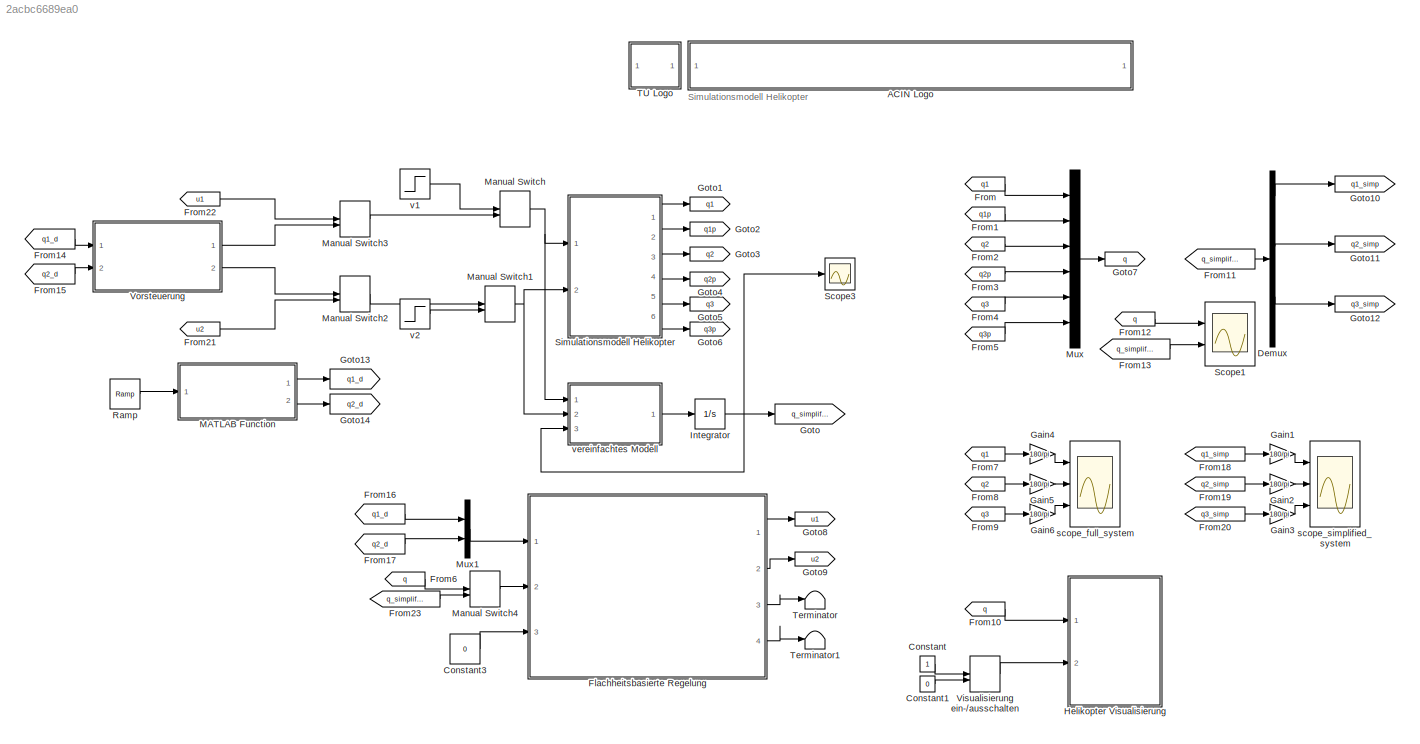
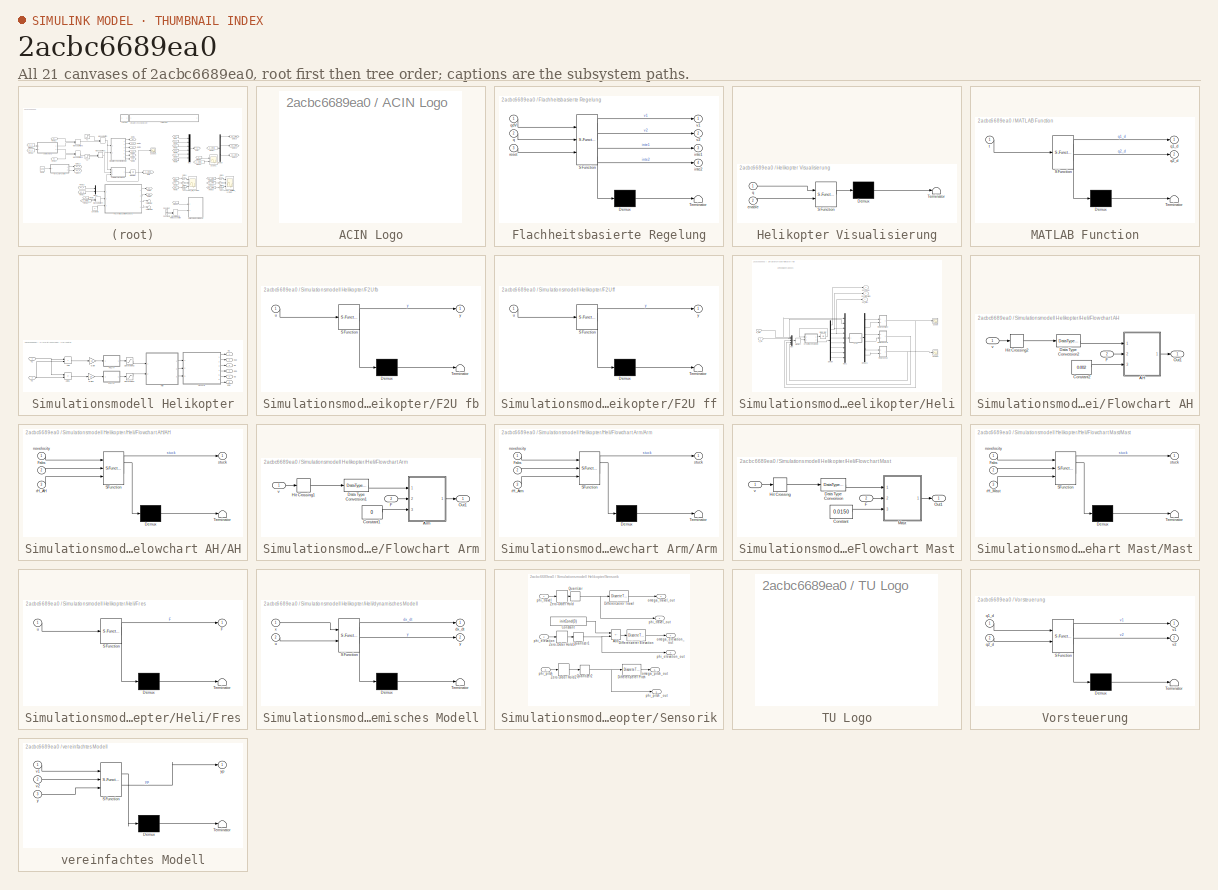
[diagram: thumbnail index - all 21 canvases of the model, root first then tree order]
MODEL slx_2acbc6689ea0
KIND model
CONFIG AbsTol = auto
CONFIG EnableMultiTasking = on
CONFIG FixedStep = auto
CONFIG MaxStep = auto
CONFIG MinStep = auto
CONFIG PostLoadFcn = , if any(exist('dsrtsu_mdlpostloadfcn', 'file') == [2, 3, 6]), try dsrtsu_mdlpostloadfcn('Execute', bdroot); catch fprintf('Error in PostLoadFcn (dsrtsu_mdlpostloadfcn) for model "%s":\n %s\n', bdroot, lasterr); end, end, \n
CONFIG RelTol = 1e-2
CONFIG SampleTimeConstraint = Unconstrained
CONFIG SolverName = ode113
CONFIG StartTime = 0.0
CONFIG StopTime = 50
BLOCK [SubSystem] ACIN Logo
  Ports = []
  RequestExecContextInheritance = off
  UserDataPersistent = on
BLOCK [Constant] Constant
BLOCK [Constant] Constant1
  Value = 0
BLOCK [Constant] Constant3
  Value = 0
BLOCK [Demux] Demux
  Outputs = 6
  Ports = [1, 6]
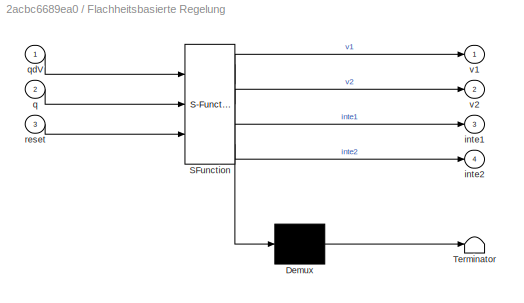
BLOCK [SubSystem] Flachheitsbasierte Regelung
  ErrorFcn = Stateflow.Translate.translate
  PermitHierarchicalResolution = ExplicitOnly
  Ports = [3, 4]
  RequestExecContextInheritance = off
  SFBlockType = MATLAB Function
  TreatAsAtomicUnit = on
BLOCK [Demux] Flachheitsbasierte Regelung/ Demux 
  Outputs = 1
  Ports = [1, 1]
BLOCK [S-Function] Flachheitsbasierte Regelung/ SFunction 
  EnableBusSupport = on
  FunctionName = sf_sfun
  Parameters = Ta,regPar,sysPar
  PortCounts = [3 5]
  Ports = [3, 5]
  SFcnIsStateOwnerBlock = off
  SFunctionDeploymentMode = off
  Tag = Stateflow S-Function 4
BLOCK [Terminator] Flachheitsbasierte Regelung/ Terminator 
BLOCK [Outport] Flachheitsbasierte Regelung/inte1
  Port = 3
  VectorParamsAs1DForOutWhenUnconnected = off
BLOCK [Outport] Flachheitsbasierte Regelung/inte2
  Port = 4
  VectorParamsAs1DForOutWhenUnconnected = off
BLOCK [Inport] Flachheitsbasierte Regelung/q
  Port = 2
BLOCK [Inport] Flachheitsbasierte Regelung/qdV
BLOCK [Inport] Flachheitsbasierte Regelung/reset
  Port = 3
BLOCK [Outport] Flachheitsbasierte Regelung/v1
  VectorParamsAs1DForOutWhenUnconnected = off
BLOCK [Outport] Flachheitsbasierte Regelung/v2
  Port = 2
  VectorParamsAs1DForOutWhenUnconnected = off
BLOCK [From] From
  GotoTag = q1
  TagVisibility = global
BLOCK [From] From1
  GotoTag = q1p
  TagVisibility = global
BLOCK [From] From10
  GotoTag = q
  TagVisibility = global
BLOCK [From] From11
  GotoTag = q_simplified
BLOCK [From] From12
  GotoTag = q
  TagVisibility = global
BLOCK [From] From13
  GotoTag = q_simplified
BLOCK [From] From14
  GotoTag = q1_d
BLOCK [From] From15
  GotoTag = q2_d
BLOCK [From] From16
  GotoTag = q1_d
BLOCK [From] From17
  GotoTag = q2_d
BLOCK [From] From18
  GotoTag = q1_simp
BLOCK [From] From19
  GotoTag = q2_simp
BLOCK [From] From2
  GotoTag = q2
  TagVisibility = global
BLOCK [From] From20
  GotoTag = q3_simp
BLOCK [From] From21
  GotoTag = u2
  TagVisibility = global
BLOCK [From] From22
  GotoTag = u1
  TagVisibility = global
BLOCK [From] From23
  GotoTag = q_simplified
BLOCK [From] From3
  GotoTag = q2p
  TagVisibility = global
BLOCK [From] From4
  GotoTag = q3
  TagVisibility = global
BLOCK [From] From5
  GotoTag = q3p
  TagVisibility = global
BLOCK [From] From6
  GotoTag = q
  TagVisibility = global
BLOCK [From] From7
  GotoTag = q1
  TagVisibility = global
BLOCK [From] From8
  GotoTag = q2
  TagVisibility = global
BLOCK [From] From9
  GotoTag = q3
  TagVisibility = global
BLOCK [Gain] Gain1
  Gain = 180/pi
  OutDataTypeStr = Inherit: Same as input
  ParamDataTypeStr = Inherit: Same as input
  SaturateOnIntegerOverflow = on
BLOCK [Gain] Gain2
  Gain = 180/pi
  OutDataTypeStr = Inherit: Same as input
  ParamDataTypeStr = Inherit: Same as input
  SaturateOnIntegerOverflow = on
BLOCK [Gain] Gain3
  Gain = 180/pi
  OutDataTypeStr = Inherit: Same as input
  ParamDataTypeStr = Inherit: Same as input
  SaturateOnIntegerOverflow = on
BLOCK [Gain] Gain4
  Gain = 180/pi
  OutDataTypeStr = Inherit: Same as input
  ParamDataTypeStr = Inherit: Same as input
  SaturateOnIntegerOverflow = on
BLOCK [Gain] Gain5
  Gain = 180/pi
  OutDataTypeStr = Inherit: Same as input
  ParamDataTypeStr = Inherit: Same as input
  SaturateOnIntegerOverflow = on
BLOCK [Gain] Gain6
  Gain = 180/pi
  OutDataTypeStr = Inherit: Same as input
  ParamDataTypeStr = Inherit: Same as input
  SaturateOnIntegerOverflow = on
BLOCK [Goto] Goto
  GotoTag = q_simplified
BLOCK [Goto] Goto1
  GotoTag = q1
  TagVisibility = global
BLOCK [Goto] Goto10
  GotoTag = q1_simp
BLOCK [Goto] Goto11
  GotoTag = q2_simp
BLOCK [Goto] Goto12
  GotoTag = q3_simp
BLOCK [Goto] Goto13
  GotoTag = q1_d
BLOCK [Goto] Goto14
  GotoTag = q2_d
BLOCK [Goto] Goto2
  GotoTag = q1p
  TagVisibility = global
BLOCK [Goto] Goto3
  GotoTag = q2
  TagVisibility = global
BLOCK [Goto] Goto4
  GotoTag = q2p
  TagVisibility = global
BLOCK [Goto] Goto5
  GotoTag = q3
  TagVisibility = global
BLOCK [Goto] Goto6
  GotoTag = q3p
  TagVisibility = global
BLOCK [Goto] Goto7
  GotoTag = q
  TagVisibility = global
BLOCK [Goto] Goto8
  GotoTag = u1
  TagVisibility = global
BLOCK [Goto] Goto9
  GotoTag = u2
  TagVisibility = global
BLOCK [SubSystem] Helikopter Visualisierung
  ErrorFcn = Stateflow.Translate.translate
  PermitHierarchicalResolution = ExplicitOnly
  Ports = [2]
  RequestExecContextInheritance = off
  SFBlockType = MATLAB Function
  TreatAsAtomicUnit = on
BLOCK [Demux] Helikopter Visualisierung/ Demux 
  Outputs = 1
  Ports = [1, 1]
BLOCK [S-Function] Helikopter Visualisierung/ SFunction 
  EnableBusSupport = on
  FunctionName = sf_sfun
  PortCounts = [2 1]
  Ports = [2, 1]
  SFcnIsStateOwnerBlock = off
  SFunctionDeploymentMode = off
  Tag = Stateflow S-Function 11
BLOCK [Terminator] Helikopter Visualisierung/ Terminator 
BLOCK [Inport] Helikopter Visualisierung/enable
  Port = 2
BLOCK [Inport] Helikopter Visualisierung/q
BLOCK [Integrator] Integrator
  InitialCondition = sysPar.qR
  Ports = [1, 1]
BLOCK [SubSystem] MATLAB Function
  ErrorFcn = Stateflow.Translate.translate
  PermitHierarchicalResolution = ExplicitOnly
  Ports = [1, 2]
  RequestExecContextInheritance = off
  SFBlockType = MATLAB Function
  TreatAsAtomicUnit = on
BLOCK [Demux] MATLAB Function/ Demux 
  Outputs = 1
  Ports = [1, 1]
BLOCK [S-Function] MATLAB Function/ SFunction 
  EnableBusSupport = on
  FunctionName = sf_sfun
  Parameters = sysPar
  PortCounts = [1 3]
  Ports = [1, 3]
  SFcnIsStateOwnerBlock = off
  SFunctionDeploymentMode = off
  Tag = Stateflow S-Function 12
BLOCK [Terminator] MATLAB Function/ Terminator 
BLOCK [Outport] MATLAB Function/q1_d
BLOCK [Outport] MATLAB Function/q2_d
  Port = 2
BLOCK [Inport] MATLAB Function/t
BLOCK [ManualSwitch] Manual Switch
  CurrentSetting = 0
BLOCK [ManualSwitch] Manual Switch1
BLOCK [ManualSwitch] Manual Switch2
  CurrentSetting = 0
BLOCK [ManualSwitch] Manual Switch3
BLOCK [ManualSwitch] Manual Switch4
  CurrentSetting = 0
BLOCK [Mux] Mux
  DisplayOption = bar
  Inputs = 6
  Ports = [6, 1]
BLOCK [Mux] Mux1
  DisplayOption = bar
  Inputs = 2
  Ports = [2, 1]
BLOCK [Reference] Ramp  REF=simulink/Sources/Ramp
  Ports = [0, 1]
  SourceBlock = simulink/Sources/Ramp
  SourceProductBaseCode = SL
  SourceType = Ramp
BLOCK [Scope] Scope1
  Floating = off
  NumInputPorts = 2
  Ports = [2]
  ScopeSpecificationString = Simulink.scopes.TimeScopeBlockCfg('CurrentConfiguration', extmgr.ConfigurationSet(extmgr.Configuration('Core','General UI',true),extmgr.Configuration('Core','Source UI',true),extmgr.Configuration('Sources','WiredSimulink',true,'DataLoggingVariableName','ScopeData1'),extmgr.Configuration('Visuals','Time Domain',true,'SerializedDisplays',{struct('MinYLimReal','-6.89631','MaxYLimReal','12.35813','YLa...<+1680ch>
BLOCK [Scope] Scope3
  Floating = off
  NumInputPorts = 1
  Ports = [1]
  ScopeSpecificationString = Simulink.scopes.TimeScopeBlockCfg('CurrentConfiguration', extmgr.ConfigurationSet(extmgr.Configuration('Core','General UI',true),extmgr.Configuration('Core','Source UI',true),extmgr.Configuration('Sources','WiredSimulink',true,'DataLoggingVariableName','ScopeData1'),extmgr.Configuration('Visuals','Time Domain',true,'SerializedDisplays',{struct('MinYLimReal','-1.90194','MaxYLimReal','7.19266','YLab...<+1477ch>
BLOCK [SubSystem] Simulationsmodell Helikopter
  MinAlgLoopOccurrences = on
  Ports = [2, 6]
  RequestExecContextInheritance = off
BLOCK [Sum] Simulationsmodell Helikopter/Add
  IconShape = rectangular
  Ports = [2, 1]
BLOCK [Sum] Simulationsmodell Helikopter/Add1
  IconShape = rectangular
  Inputs = +-
  Ports = [2, 1]
BLOCK [SubSystem] Simulationsmodell Helikopter/F2U fb
  ErrorFcn = Stateflow.Translate.translate
  PermitHierarchicalResolution = ExplicitOnly
  Ports = [1, 1]
  RequestExecContextInheritance = off
  SFBlockType = MATLAB Function
  TreatAsAtomicUnit = on
BLOCK [Demux] Simulationsmodell Helikopter/F2U fb/ Demux 
  Outputs = 1
  Ports = [1, 1]
BLOCK [S-Function] Simulationsmodell Helikopter/F2U fb/ SFunction 
  EnableBusSupport = on
  FunctionName = sf_sfun
  PortCounts = [1 2]
  Ports = [1, 2]
  SFcnIsStateOwnerBlock = off
  SFunctionDeploymentMode = off
  Tag = Stateflow S-Function 8
BLOCK [Terminator] Simulationsmodell Helikopter/F2U fb/ Terminator 
BLOCK [Inport] Simulationsmodell Helikopter/F2U fb/u
BLOCK [Outport] Simulationsmodell Helikopter/F2U fb/y
  VectorParamsAs1DForOutWhenUnconnected = off
BLOCK [SubSystem] Simulationsmodell Helikopter/F2U ff
  ErrorFcn = Stateflow.Translate.translate
  PermitHierarchicalResolution = ExplicitOnly
  Ports = [1, 1]
  RequestExecContextInheritance = off
  SFBlockType = MATLAB Function
  TreatAsAtomicUnit = on
BLOCK [Demux] Simulationsmodell Helikopter/F2U ff/ Demux 
  Outputs = 1
  Ports = [1, 1]
BLOCK [S-Function] Simulationsmodell Helikopter/F2U ff/ SFunction 
  EnableBusSupport = on
  FunctionName = sf_sfun
  PortCounts = [1 2]
  Ports = [1, 2]
  SFcnIsStateOwnerBlock = off
  SFunctionDeploymentMode = off
  Tag = Stateflow S-Function 1
BLOCK [Terminator] Simulationsmodell Helikopter/F2U ff/ Terminator 
BLOCK [Inport] Simulationsmodell Helikopter/F2U ff/u
BLOCK [Outport] Simulationsmodell Helikopter/F2U ff/y
  VectorParamsAs1DForOutWhenUnconnected = off
BLOCK [Gain] Simulationsmodell Helikopter/Gain
  Gain = 1/2
BLOCK [Gain] Simulationsmodell Helikopter/Gain1
  Gain = 1/2
BLOCK [SubSystem] Simulationsmodell Helikopter/Heli
  Ports = [2, 3]
  RequestExecContextInheritance = off
BLOCK [Demux] Simulationsmodell Helikopter/Heli/Demux
  DisplayOption = none
  Outputs = 8
  Ports = [1, 8]
BLOCK [Demux] Simulationsmodell Helikopter/Heli/Demux1
  DisplayOption = none
  Outputs = 6
  Ports = [1, 6]
BLOCK [SubSystem] Simulationsmodell Helikopter/Heli/Flowchart AH
  Ports = [2, 1]
  RequestExecContextInheritance = off
BLOCK [SubSystem] Simulationsmodell Helikopter/Heli/Flowchart AH/AH
  ErrorFcn = Stateflow.Translate.translate
  PermitHierarchicalResolution = ExplicitOnly
  Ports = [3, 1]
  RequestExecContextInheritance = off
  SFBlockType = Chart
  TreatAsAtomicUnit = on
BLOCK [Demux] Simulationsmodell Helikopter/Heli/Flowchart AH/AH/ Demux 
  Outputs = 1
  Ports = [1, 1]
BLOCK [S-Function] Simulationsmodell Helikopter/Heli/Flowchart AH/AH/ SFunction 
  EnableBusSupport = on
  FunctionName = sf_sfun
  PortCounts = [3 2]
  Ports = [3, 2]
  SFcnIsStateOwnerBlock = off
  SFunctionDeploymentMode = off
  Tag = Stateflow S-Function 2
BLOCK [Terminator] Simulationsmodell Helikopter/Heli/Flowchart AH/AH/ Terminator 
BLOCK [Inport] Simulationsmodell Helikopter/Heli/Flowchart AH/AH/Fabs
  Port = 2
BLOCK [Inport] Simulationsmodell Helikopter/Heli/Flowchart AH/AH/novelocity
BLOCK [Inport] Simulationsmodell Helikopter/Heli/Flowchart AH/AH/rH_AH
  Port = 3
BLOCK [Outport] Simulationsmodell Helikopter/Heli/Flowchart AH/AH/stuck
  VectorParamsAs1DForOutWhenUnconnected = off
BLOCK [Constant] Simulationsmodell Helikopter/Heli/Flowchart AH/Constant2
  Value = 0.002
BLOCK [DataTypeConversion] Simulationsmodell Helikopter/Heli/Flowchart AH/Data Type Conversion2
  OutDataTypeStr = double
BLOCK [Inport] Simulationsmodell Helikopter/Heli/Flowchart AH/F
  Port = 2
BLOCK [HitCross] Simulationsmodell Helikopter/Heli/Flowchart AH/Hit Crossing2
  Ports = [1, 1]
  ZeroCross = off
BLOCK [Outport] Simulationsmodell Helikopter/Heli/Flowchart AH/Out1
  VectorParamsAs1DForOutWhenUnconnected = off
BLOCK [Inport] Simulationsmodell Helikopter/Heli/Flowchart AH/v
BLOCK [SubSystem] Simulationsmodell Helikopter/Heli/Flowchart Arm
  Ports = [2, 1]
  RequestExecContextInheritance = off
BLOCK [SubSystem] Simulationsmodell Helikopter/Heli/Flowchart Arm/Arm
  ErrorFcn = Stateflow.Translate.translate
  PermitHierarchicalResolution = ExplicitOnly
  Ports = [3, 1]
  RequestExecContextInheritance = off
  SFBlockType = Chart
  TreatAsAtomicUnit = on
BLOCK [Demux] Simulationsmodell Helikopter/Heli/Flowchart Arm/Arm/ Demux 
  Outputs = 1
  Ports = [1, 1]
BLOCK [S-Function] Simulationsmodell Helikopter/Heli/Flowchart Arm/Arm/ SFunction 
  EnableBusSupport = on
  FunctionName = sf_sfun
  PortCounts = [3 2]
  Ports = [3, 2]
  SFcnIsStateOwnerBlock = off
  SFunctionDeploymentMode = off
  Tag = Stateflow S-Function 3
BLOCK [Terminator] Simulationsmodell Helikopter/Heli/Flowchart Arm/Arm/ Terminator 
BLOCK [Inport] Simulationsmodell Helikopter/Heli/Flowchart Arm/Arm/Fabs
  Port = 2
BLOCK [Inport] Simulationsmodell Helikopter/Heli/Flowchart Arm/Arm/novelocity
BLOCK [Inport] Simulationsmodell Helikopter/Heli/Flowchart Arm/Arm/rH_Arm
  Port = 3
BLOCK [Outport] Simulationsmodell Helikopter/Heli/Flowchart Arm/Arm/stuck
  VectorParamsAs1DForOutWhenUnconnected = off
BLOCK [Constant] Simulationsmodell Helikopter/Heli/Flowchart Arm/Constant1
  Value = 0
BLOCK [DataTypeConversion] Simulationsmodell Helikopter/Heli/Flowchart Arm/Data Type Conversion1
  OutDataTypeStr = double
BLOCK [Inport] Simulationsmodell Helikopter/Heli/Flowchart Arm/F
  Port = 2
BLOCK [HitCross] Simulationsmodell Helikopter/Heli/Flowchart Arm/Hit Crossing1
  Ports = [1, 1]
  ZeroCross = off
BLOCK [Outport] Simulationsmodell Helikopter/Heli/Flowchart Arm/Out1
  VectorParamsAs1DForOutWhenUnconnected = off
BLOCK [Inport] Simulationsmodell Helikopter/Heli/Flowchart Arm/v
BLOCK [SubSystem] Simulationsmodell Helikopter/Heli/Flowchart Mast
  Ports = [2, 1]
  RequestExecContextInheritance = off
BLOCK [Constant] Simulationsmodell Helikopter/Heli/Flowchart Mast/Constant
  Value = 0.0150
BLOCK [DataTypeConversion] Simulationsmodell Helikopter/Heli/Flowchart Mast/Data Type Conversion
  OutDataTypeStr = double
BLOCK [Inport] Simulationsmodell Helikopter/Heli/Flowchart Mast/F
  Port = 2
BLOCK [HitCross] Simulationsmodell Helikopter/Heli/Flowchart Mast/Hit Crossing
  Ports = [1, 1]
  ZeroCross = off
BLOCK [SubSystem] Simulationsmodell Helikopter/Heli/Flowchart Mast/Mast
  ErrorFcn = Stateflow.Translate.translate
  PermitHierarchicalResolution = ExplicitOnly
  Ports = [3, 1]
  RequestExecContextInheritance = off
  SFBlockType = Chart
  TreatAsAtomicUnit = on
BLOCK [Demux] Simulationsmodell Helikopter/Heli/Flowchart Mast/Mast/ Demux 
  Outputs = 1
  Ports = [1, 1]
BLOCK [S-Function] Simulationsmodell Helikopter/Heli/Flowchart Mast/Mast/ SFunction 
  EnableBusSupport = on
  FunctionName = sf_sfun
  PortCounts = [3 2]
  Ports = [3, 2]
  SFcnIsStateOwnerBlock = off
  SFunctionDeploymentMode = off
  Tag = Stateflow S-Function 5
BLOCK [Terminator] Simulationsmodell Helikopter/Heli/Flowchart Mast/Mast/ Terminator 
BLOCK [Inport] Simulationsmodell Helikopter/Heli/Flowchart Mast/Mast/Fabs
  Port = 2
BLOCK [Inport] Simulationsmodell Helikopter/Heli/Flowchart Mast/Mast/novelocity
BLOCK [Inport] Simulationsmodell Helikopter/Heli/Flowchart Mast/Mast/rH_Mast
  Port = 3
BLOCK [Outport] Simulationsmodell Helikopter/Heli/Flowchart Mast/Mast/stuck
  VectorParamsAs1DForOutWhenUnconnected = off
BLOCK [Outport] Simulationsmodell Helikopter/Heli/Flowchart Mast/Out1
  VectorParamsAs1DForOutWhenUnconnected = off
BLOCK [Inport] Simulationsmodell Helikopter/Heli/Flowchart Mast/v
BLOCK [SubSystem] Simulationsmodell Helikopter/Heli/Fres
  ErrorFcn = Stateflow.Translate.translate
  PermitHierarchicalResolution = ExplicitOnly
  Ports = [1, 1]
  RequestExecContextInheritance = off
  SFBlockType = MATLAB Function
  TreatAsAtomicUnit = on
BLOCK [Demux] Simulationsmodell Helikopter/Heli/Fres/ Demux 
  Outputs = 1
  Ports = [1, 1]
BLOCK [S-Function] Simulationsmodell Helikopter/Heli/Fres/ SFunction 
  EnableBusSupport = on
  FunctionName = sf_sfun
  Parameters = parameters
  PortCounts = [1 2]
  Ports = [1, 2]
  SFcnIsStateOwnerBlock = off
  SFunctionDeploymentMode = off
  Tag = Stateflow S-Function 9
BLOCK [Terminator] Simulationsmodell Helikopter/Heli/Fres/ Terminator 
BLOCK [Outport] Simulationsmodell Helikopter/Heli/Fres/F
  VectorParamsAs1DForOutWhenUnconnected = off
BLOCK [Inport] Simulationsmodell Helikopter/Heli/Fres/u
BLOCK [Integrator] Simulationsmodell Helikopter/Heli/Integrator
  InitialCondition = initCond
  Ports = [1, 1]
BLOCK [Memory] Simulationsmodell Helikopter/Heli/Memory
BLOCK [Mux] Simulationsmodell Helikopter/Heli/Mux
  DisplayOption = bar
  Inputs = 5
  Ports = [5, 1]
BLOCK [Mux] Simulationsmodell Helikopter/Heli/Mux1
  DisplayOption = bar
  Inputs = 9
  Ports = [9, 1]
BLOCK [Scope] Simulationsmodell Helikopter/Heli/Scope
  Floating = off
  NumInputPorts = 1
  Ports = [1]
  ScopeSpecificationString = Simulink.scopes.TimeScopeBlockCfg('CurrentConfiguration', extmgr.ConfigurationSet(extmgr.Configuration('Core','General UI',true),extmgr.Configuration('Core','Source UI',true),extmgr.Configuration('Sources','WiredSimulink',true,'DataLoggingVariableName','ScopeData2','DataLoggingSaveFormat','StructureWithTime','DataLoggingDecimation','1','DataLoggingDecimateData',true),extmgr.Configuration('Visuals'...<+1594ch>
BLOCK [Scope] Simulationsmodell Helikopter/Heli/Scope1
  Floating = off
  NumInputPorts = 1
  Ports = [1]
  ScopeSpecificationString = Simulink.scopes.TimeScopeBlockCfg('CurrentConfiguration', extmgr.ConfigurationSet(extmgr.Configuration('Core','General UI',true),extmgr.Configuration('Core','Source UI',true),extmgr.Configuration('Sources','WiredSimulink',true,'DataLoggingVariableName','ScopeData11','DataLoggingSaveFormat','StructureWithTime','DataLoggingDecimation','1','DataLoggingDecimateData',true),extmgr.Configuration('Visuals...<+1595ch>
BLOCK [SubSystem] Simulationsmodell Helikopter/Heli/dynamisches Modell
  ErrorFcn = Stateflow.Translate.translate
  PermitHierarchicalResolution = ExplicitOnly
  Ports = [2, 2]
  RequestExecContextInheritance = off
  SFBlockType = MATLAB Function
  TreatAsAtomicUnit = on
BLOCK [Demux] Simulationsmodell Helikopter/Heli/dynamisches Modell/ Demux 
  Outputs = 1
  Ports = [1, 1]
BLOCK [S-Function] Simulationsmodell Helikopter/Heli/dynamisches Modell/ SFunction 
  EnableBusSupport = on
  FunctionName = sf_sfun
  Parameters = p
  PortCounts = [2 3]
  Ports = [2, 3]
  SFcnIsStateOwnerBlock = off
  SFunctionDeploymentMode = off
  Tag = Stateflow S-Function 10
BLOCK [Terminator] Simulationsmodell Helikopter/Heli/dynamisches Modell/ Terminator 
BLOCK [Outport] Simulationsmodell Helikopter/Heli/dynamisches Modell/dx_dt
  VectorParamsAs1DForOutWhenUnconnected = off
BLOCK [Inport] Simulationsmodell Helikopter/Heli/dynamisches Modell/u
  Port = 2
BLOCK [Inport] Simulationsmodell Helikopter/Heli/dynamisches Modell/x
BLOCK [Outport] Simulationsmodell Helikopter/Heli/dynamisches Modell/y
  Port = 2
  VectorParamsAs1DForOutWhenUnconnected = off
BLOCK [Outport] Simulationsmodell Helikopter/Heli/phi_elevation
  NameLocation = top
  Port = 2
  VectorParamsAs1DForOutWhenUnconnected = off
BLOCK [Outport] Simulationsmodell Helikopter/Heli/phi_pitch
  NameLocation = top
  Port = 3
  VectorParamsAs1DForOutWhenUnconnected = off
BLOCK [Outport] Simulationsmodell Helikopter/Heli/phi_travel
  NameLocation = top
  VectorParamsAs1DForOutWhenUnconnected = off
BLOCK [Inport] Simulationsmodell Helikopter/Heli/u_RL
  Port = 2
BLOCK [Inport] Simulationsmodell Helikopter/Heli/u_RR
BLOCK [Saturate] Simulationsmodell Helikopter/Saturation1
  LowerLimit = -15
  UpperLimit = 15
BLOCK [Saturate] Simulationsmodell Helikopter/Saturation2
  LowerLimit = -15
  UpperLimit = 15
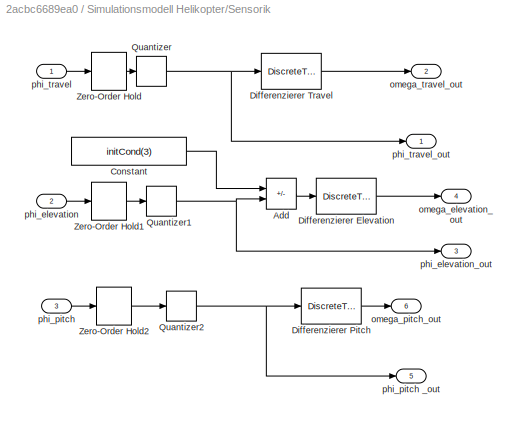
BLOCK [SubSystem] Simulationsmodell Helikopter/Sensorik
  Ports = [3, 6]
  RequestExecContextInheritance = off
BLOCK [Sum] Simulationsmodell Helikopter/Sensorik/Add
  IconShape = rectangular
  Inputs = -+
  Ports = [2, 1]
BLOCK [Constant] Simulationsmodell Helikopter/Sensorik/Constant
  Value = initCond(3)
BLOCK [DiscreteTransferFcn] Simulationsmodell Helikopter/Sensorik/Differenzierer Elevation
  Denominator = [1.000000000000000  -0.980198673306755]
  InputPortMap = u0
  Numerator = [20.000000000000000 -19.999999999999996]
  Ports = [1, 1]
  SampleTime = 1e-3
BLOCK [DiscreteTransferFcn] Simulationsmodell Helikopter/Sensorik/Differenzierer Pitch
  Denominator = [1.000000000000000  -0.980198673306755]
  InputPortMap = u0
  Numerator = [20.000000000000000 -19.999999999999996]
  Ports = [1, 1]
  SampleTime = 1e-3
BLOCK [DiscreteTransferFcn] Simulationsmodell Helikopter/Sensorik/Differenzierer Travel
  Denominator = [1.000000000000000  -0.980198673306755]
  InputPortMap = u0
  Numerator = [20.000000000000000 -19.999999999999996]
  Ports = [1, 1]
  SampleTime = 1e-3
BLOCK [Quantizer] Simulationsmodell Helikopter/Sensorik/Quantizer
  QuantizationInterval = 2*pi/2^13
BLOCK [Quantizer] Simulationsmodell Helikopter/Sensorik/Quantizer1
  QuantizationInterval = 2*pi/4096
BLOCK [Quantizer] Simulationsmodell Helikopter/Sensorik/Quantizer2
  QuantizationInterval = 2*pi/4096
BLOCK [ZeroOrderHold] Simulationsmodell Helikopter/Sensorik/Zero-Order Hold
  SampleTime = 1e-3
BLOCK [ZeroOrderHold] Simulationsmodell Helikopter/Sensorik/Zero-Order Hold1
  SampleTime = 1e-3
BLOCK [ZeroOrderHold] Simulationsmodell Helikopter/Sensorik/Zero-Order Hold2
  SampleTime = 1e-3
BLOCK [Outport] Simulationsmodell Helikopter/Sensorik/omega_elevation_out
  Port = 4
  VectorParamsAs1DForOutWhenUnconnected = off
BLOCK [Outport] Simulationsmodell Helikopter/Sensorik/omega_pitch_out
  Port = 6
  VectorParamsAs1DForOutWhenUnconnected = off
BLOCK [Outport] Simulationsmodell Helikopter/Sensorik/omega_travel_out
  Port = 2
  VectorParamsAs1DForOutWhenUnconnected = off
BLOCK [Inport] Simulationsmodell Helikopter/Sensorik/phi_elevation
  Port = 2
BLOCK [Outport] Simulationsmodell Helikopter/Sensorik/phi_elevation_out
  Port = 3
  VectorParamsAs1DForOutWhenUnconnected = off
BLOCK [Inport] Simulationsmodell Helikopter/Sensorik/phi_pitch
  Port = 3
BLOCK [Outport] Simulationsmodell Helikopter/Sensorik/phi_pitch _out
  Port = 5
  VectorParamsAs1DForOutWhenUnconnected = off
BLOCK [Inport] Simulationsmodell Helikopter/Sensorik/phi_travel
BLOCK [Outport] Simulationsmodell Helikopter/Sensorik/phi_travel_out
  VectorParamsAs1DForOutWhenUnconnected = off
BLOCK [Outport] Simulationsmodell Helikopter/q1
  VectorParamsAs1DForOutWhenUnconnected = off
BLOCK [Outport] Simulationsmodell Helikopter/q1p
  Port = 2
  VectorParamsAs1DForOutWhenUnconnected = off
BLOCK [Outport] Simulationsmodell Helikopter/q2
  Port = 3
  VectorParamsAs1DForOutWhenUnconnected = off
BLOCK [Outport] Simulationsmodell Helikopter/q2p
  Port = 4
  VectorParamsAs1DForOutWhenUnconnected = off
BLOCK [Outport] Simulationsmodell Helikopter/q3
  Port = 5
  VectorParamsAs1DForOutWhenUnconnected = off
BLOCK [Outport] Simulationsmodell Helikopter/q3p
  Port = 6
  VectorParamsAs1DForOutWhenUnconnected = off
BLOCK [Inport] Simulationsmodell Helikopter/v1
BLOCK [Inport] Simulationsmodell Helikopter/v2
  Port = 2
BLOCK [SubSystem] TU Logo
  Ports = []
  RequestExecContextInheritance = off
  UserDataPersistent = on
BLOCK [Terminator] Terminator
BLOCK [Terminator] Terminator1
BLOCK [ManualSwitch] Visualisierung ein-//ausschalten
BLOCK [SubSystem] Vorsteuerung
  ErrorFcn = Stateflow.Translate.translate
  PermitHierarchicalResolution = ExplicitOnly
  Ports = [2, 2]
  RequestExecContextInheritance = off
  SFBlockType = MATLAB Function
  TreatAsAtomicUnit = on
BLOCK [Demux] Vorsteuerung/ Demux 
  Outputs = 1
  Ports = [1, 1]
BLOCK [S-Function] Vorsteuerung/ SFunction 
  EnableBusSupport = on
  FunctionName = sf_sfun
  Parameters = sysPar
  PortCounts = [2 3]
  Ports = [2, 3]
  SFcnIsStateOwnerBlock = off
  SFunctionDeploymentMode = off
  Tag = Stateflow S-Function 7
BLOCK [Terminator] Vorsteuerung/ Terminator 
BLOCK [Inport] Vorsteuerung/q1_d
BLOCK [Inport] Vorsteuerung/q2_d
  Port = 2
BLOCK [Outport] Vorsteuerung/v1
BLOCK [Outport] Vorsteuerung/v2
  Port = 2
BLOCK [Scope] scope_full_system
  Floating = off
  NumInputPorts = 3
  Ports = [3]
  ScopeSpecificationString = Simulink.scopes.TimeScopeBlockCfg('CurrentConfiguration', extmgr.ConfigurationSet(extmgr.Configuration('Core','General UI',true),extmgr.Configuration('Core','Source UI',true),extmgr.Configuration('Sources','WiredSimulink',true,'DataLoggingSaveFormat','StructureWithTime','DataLoggingDecimation','1','DataLoggingDecimateData',true),extmgr.Configuration('Visuals','Time Domain',true,'SerializedDisplays...<+2988ch>
BLOCK [Scope] scope_simplified_system
  Floating = off
  NumInputPorts = 3
  Ports = [3]
  ScopeSpecificationString = Simulink.scopes.TimeScopeBlockCfg('CurrentConfiguration', extmgr.ConfigurationSet(extmgr.Configuration('Core','General UI',true),extmgr.Configuration('Core','Source UI',true),extmgr.Configuration('Sources','WiredSimulink',true,'DataLoggingSaveFormat','StructureWithTime','DataLoggingDecimation','1','DataLoggingDecimateData',true,'DataLoggingVariableName','ScopeData2'),extmgr.Configuration('Visuals'...<+3022ch>
BLOCK [Step] v1
  After = .5
  SampleTime = 0
BLOCK [Step] v2
  After = 0
  SampleTime = 0
BLOCK [SubSystem] vereinfachtes Modell
  ErrorFcn = Stateflow.Translate.translate
  PermitHierarchicalResolution = ExplicitOnly
  Ports = [3, 1]
  RequestExecContextInheritance = off
  SFBlockType = MATLAB Function
  TreatAsAtomicUnit = on
BLOCK [Demux] vereinfachtes Modell/ Demux 
  Outputs = 1
  Ports = [1, 1]
BLOCK [S-Function] vereinfachtes Modell/ SFunction 
  EnableBusSupport = on
  FunctionName = sf_sfun
  Parameters = sysPar
  PortCounts = [3 2]
  Ports = [3, 2]
  SFcnIsStateOwnerBlock = off
  SFunctionDeploymentMode = off
  Tag = Stateflow S-Function 6
BLOCK [Terminator] vereinfachtes Modell/ Terminator 
BLOCK [Inport] vereinfachtes Modell/v1
BLOCK [Inport] vereinfachtes Modell/v2
  Port = 2
BLOCK [Inport] vereinfachtes Modell/y
  Port = 3
BLOCK [Outport] vereinfachtes Modell/yp
ANNOTATION (root): Simulationsmodell Helikopter
ANNOTATION Simulationsmodell Helikopter/Heli: get rid of algebraic loops
LINE Constant1:1 -> Visualisierung ein-//ausschalten:2
LINE Constant3:1 -> Flachheitsbasierte Regelung:3
LINE Constant:1 -> Visualisierung ein-//ausschalten:1
LINE Demux:1 -> Goto10:1
LINE Demux:3 -> Goto11:1
LINE Demux:5 -> Goto12:1
LINE Flachheitsbasierte Regelung:1 -> Goto8:1
LINE Flachheitsbasierte Regelung:2 -> Goto9:1
LINE Flachheitsbasierte Regelung:3 -> Terminator:1
LINE Flachheitsbasierte Regelung:4 -> Terminator1:1
LINE From10:1 -> Helikopter Visualisierung:1
LINE From11:1 -> Demux:1
LINE From12:1 -> Scope1:1
LINE From13:1 -> Scope1:2
LINE From14:1 -> Vorsteuerung:1
LINE From15:1 -> Vorsteuerung:2
LINE From16:1 -> Mux1:1
LINE From17:1 -> Mux1:2
LINE From18:1 -> Gain1:1
LINE From19:1 -> Gain2:1
LINE From1:1 -> Mux:2
LINE From20:1 -> Gain3:1
LINE From21:1 -> Manual Switch2:2
LINE From22:1 -> Manual Switch3:1
LINE From23:1 -> Manual Switch4:2
LINE From2:1 -> Mux:3
LINE From3:1 -> Mux:4
LINE From4:1 -> Mux:5
LINE From5:1 -> Mux:6
LINE From6:1 -> Manual Switch4:1
LINE From7:1 -> Gain4:1
LINE From8:1 -> Gain5:1
LINE From9:1 -> Gain6:1
LINE From:1 -> Mux:1
LINE Gain1:1 -> scope_simplified_system:1
LINE Gain2:1 -> scope_simplified_system:2
LINE Gain3:1 -> scope_simplified_system:3
LINE Gain4:1 -> scope_full_system:1
LINE Gain5:1 -> scope_full_system:2
LINE Gain6:1 -> scope_full_system:3
NET Integrator:1 -> Goto:1, Scope3:1, vereinfachtes Modell:3
LINE MATLAB Function:1 -> Goto13:1
LINE MATLAB Function:2 -> Goto14:1
NET Manual Switch1:1 -> Simulationsmodell Helikopter:2, vereinfachtes Modell:2
LINE Manual Switch2:1 -> Manual Switch1:1
LINE Manual Switch3:1 -> Manual Switch:2
LINE Manual Switch4:1 -> Flachheitsbasierte Regelung:2
NET Manual Switch:1 -> Simulationsmodell Helikopter:1, vereinfachtes Modell:1
LINE Mux1:1 -> Flachheitsbasierte Regelung:1
LINE Mux:1 -> Goto7:1
LINE Ramp:1 -> MATLAB Function:1
LINE Simulationsmodell Helikopter/Add1:1 -> Simulationsmodell Helikopter/Gain1:1
LINE Simulationsmodell Helikopter/Add:1 -> Simulationsmodell Helikopter/Gain:1
LINE Simulationsmodell Helikopter/F2U fb:1 -> Simulationsmodell Helikopter/Saturation1:1
LINE Simulationsmodell Helikopter/F2U ff:1 -> Simulationsmodell Helikopter/Saturation2:1
LINE Simulationsmodell Helikopter/Gain1:1 -> Simulationsmodell Helikopter/F2U fb:1
LINE Simulationsmodell Helikopter/Gain:1 -> Simulationsmodell Helikopter/F2U ff:1
LINE Simulationsmodell Helikopter/Heli/Demux1:1 -> Simulationsmodell Helikopter/Heli/Flowchart Mast:1
LINE Simulationsmodell Helikopter/Heli/Demux1:2 -> Simulationsmodell Helikopter/Heli/Flowchart Mast:2
LINE Simulationsmodell Helikopter/Heli/Demux1:3 -> Simulationsmodell Helikopter/Heli/Flowchart Arm:1
LINE Simulationsmodell Helikopter/Heli/Demux1:4 -> Simulationsmodell Helikopter/Heli/Flowchart Arm:2
LINE Simulationsmodell Helikopter/Heli/Demux1:5 -> Simulationsmodell Helikopter/Heli/Flowchart AH:1
LINE Simulationsmodell Helikopter/Heli/Demux1:6 -> Simulationsmodell Helikopter/Heli/Flowchart AH:2
LINE Simulationsmodell Helikopter/Heli/Demux:1 -> Simulationsmodell Helikopter/Heli/phi_travel:1
NET Simulationsmodell Helikopter/Heli/Demux:2 -> Simulationsmodell Helikopter/Heli/Mux1:3, Simulationsmodell Helikopter/Heli/phi_elevation:1
NET Simulationsmodell Helikopter/Heli/Demux:3 -> Simulationsmodell Helikopter/Heli/Mux1:4, Simulationsmodell Helikopter/Heli/phi_pitch:1
LINE Simulationsmodell Helikopter/Heli/Demux:4 -> Simulationsmodell Helikopter/Heli/Mux1:5
LINE Simulationsmodell Helikopter/Heli/Demux:5 -> Simulationsmodell Helikopter/Heli/Mux1:6
LINE Simulationsmodell Helikopter/Heli/Demux:6 -> Simulationsmodell Helikopter/Heli/Mux1:7
LINE Simulationsmodell Helikopter/Heli/Demux:7 -> Simulationsmodell Helikopter/Heli/Mux1:8
LINE Simulationsmodell Helikopter/Heli/Demux:8 -> Simulationsmodell Helikopter/Heli/Mux1:9
LINE Simulationsmodell Helikopter/Heli/Flowchart AH/AH:1 -> Simulationsmodell Helikopter/Heli/Flowchart AH/Out1:1
LINE Simulationsmodell Helikopter/Heli/Flowchart AH/Constant2:1 -> Simulationsmodell Helikopter/Heli/Flowchart AH/AH:3
LINE Simulationsmodell Helikopter/Heli/Flowchart AH/Data Type Conversion2:1 -> Simulationsmodell Helikopter/Heli/Flowchart AH/AH:1
LINE Simulationsmodell Helikopter/Heli/Flowchart AH/F:1 -> Simulationsmodell Helikopter/Heli/Flowchart AH/AH:2
LINE Simulationsmodell Helikopter/Heli/Flowchart AH/Hit Crossing2:1 -> Simulationsmodell Helikopter/Heli/Flowchart AH/Data Type Conversion2:1
LINE Simulationsmodell Helikopter/Heli/Flowchart AH/v:1 -> Simulationsmodell Helikopter/Heli/Flowchart AH/Hit Crossing2:1
NET Simulationsmodell Helikopter/Heli/Flowchart AH:1 -> Simulationsmodell Helikopter/Heli/Mux:5, Simulationsmodell Helikopter/Heli/Scope1:1
LINE Simulationsmodell Helikopter/Heli/Flowchart Arm/Arm:1 -> Simulationsmodell Helikopter/Heli/Flowchart Arm/Out1:1
LINE Simulationsmodell Helikopter/Heli/Flowchart Arm/Constant1:1 -> Simulationsmodell Helikopter/Heli/Flowchart Arm/Arm:3
LINE Simulationsmodell Helikopter/Heli/Flowchart Arm/Data Type Conversion1:1 -> Simulationsmodell Helikopter/Heli/Flowchart Arm/Arm:1
LINE Simulationsmodell Helikopter/Heli/Flowchart Arm/F:1 -> Simulationsmodell Helikopter/Heli/Flowchart Arm/Arm:2
LINE Simulationsmodell Helikopter/Heli/Flowchart Arm/Hit Crossing1:1 -> Simulationsmodell Helikopter/Heli/Flowchart Arm/Data Type Conversion1:1
LINE Simulationsmodell Helikopter/Heli/Flowchart Arm/v:1 -> Simulationsmodell Helikopter/Heli/Flowchart Arm/Hit Crossing1:1
LINE Simulationsmodell Helikopter/Heli/Flowchart Arm:1 -> Simulationsmodell Helikopter/Heli/Mux:4
LINE Simulationsmodell Helikopter/Heli/Flowchart Mast/Constant:1 -> Simulationsmodell Helikopter/Heli/Flowchart Mast/Mast:3
LINE Simulationsmodell Helikopter/Heli/Flowchart Mast/Data Type Conversion:1 -> Simulationsmodell Helikopter/Heli/Flowchart Mast/Mast:1
LINE Simulationsmodell Helikopter/Heli/Flowchart Mast/F:1 -> Simulationsmodell Helikopter/Heli/Flowchart Mast/Mast:2
LINE Simulationsmodell Helikopter/Heli/Flowchart Mast/Hit Crossing:1 -> Simulationsmodell Helikopter/Heli/Flowchart Mast/Data Type Conversion:1
LINE Simulationsmodell Helikopter/Heli/Flowchart Mast/Mast:1 -> Simulationsmodell Helikopter/Heli/Flowchart Mast/Out1:1
LINE Simulationsmodell Helikopter/Heli/Flowchart Mast/v:1 -> Simulationsmodell Helikopter/Heli/Flowchart Mast/Hit Crossing:1
NET Simulationsmodell Helikopter/Heli/Flowchart Mast:1 -> Simulationsmodell Helikopter/Heli/Mux:3, Simulationsmodell Helikopter/Heli/Scope:1
LINE Simulationsmodell Helikopter/Heli/Fres:1 -> Simulationsmodell Helikopter/Heli/Demux1:1
LINE Simulationsmodell Helikopter/Heli/Integrator:1 -> Simulationsmodell Helikopter/Heli/dynamisches Modell:1
LINE Simulationsmodell Helikopter/Heli/Memory:1 -> Simulationsmodell Helikopter/Heli/dynamisches Modell:2
LINE Simulationsmodell Helikopter/Heli/Mux1:1 -> Simulationsmodell Helikopter/Heli/Fres:1
LINE Simulationsmodell Helikopter/Heli/Mux:1 -> Simulationsmodell Helikopter/Heli/Memory:1
LINE Simulationsmodell Helikopter/Heli/dynamisches Modell:1 -> Simulationsmodell Helikopter/Heli/Integrator:1
LINE Simulationsmodell Helikopter/Heli/dynamisches Modell:2 -> Simulationsmodell Helikopter/Heli/Demux:1
NET Simulationsmodell Helikopter/Heli/u_RL:1 -> Simulationsmodell Helikopter/Heli/Mux1:2, Simulationsmodell Helikopter/Heli/Mux:2
NET Simulationsmodell Helikopter/Heli/u_RR:1 -> Simulationsmodell Helikopter/Heli/Mux1:1, Simulationsmodell Helikopter/Heli/Mux:1
LINE Simulationsmodell Helikopter/Heli:1 -> Simulationsmodell Helikopter/Sensorik:1
LINE Simulationsmodell Helikopter/Heli:2 -> Simulationsmodell Helikopter/Sensorik:2
LINE Simulationsmodell Helikopter/Heli:3 -> Simulationsmodell Helikopter/Sensorik:3
LINE Simulationsmodell Helikopter/Saturation1:1 -> Simulationsmodell Helikopter/Heli:2
LINE Simulationsmodell Helikopter/Saturation2:1 -> Simulationsmodell Helikopter/Heli:1
LINE Simulationsmodell Helikopter/Sensorik/Add:1 -> Simulationsmodell Helikopter/Sensorik/Differenzierer Elevation:1
LINE Simulationsmodell Helikopter/Sensorik/Constant:1 -> Simulationsmodell Helikopter/Sensorik/Add:1
LINE Simulationsmodell Helikopter/Sensorik/Differenzierer Elevation:1 -> Simulationsmodell Helikopter/Sensorik/omega_elevation_out:1
LINE Simulationsmodell Helikopter/Sensorik/Differenzierer Pitch:1 -> Simulationsmodell Helikopter/Sensorik/omega_pitch_out:1
LINE Simulationsmodell Helikopter/Sensorik/Differenzierer Travel:1 -> Simulationsmodell Helikopter/Sensorik/omega_travel_out:1
NET Simulationsmodell Helikopter/Sensorik/Quantizer1:1 -> Simulationsmodell Helikopter/Sensorik/Add:2, Simulationsmodell Helikopter/Sensorik/phi_elevation_out:1
NET Simulationsmodell Helikopter/Sensorik/Quantizer2:1 -> Simulationsmodell Helikopter/Sensorik/Differenzierer Pitch:1, Simulationsmodell Helikopter/Sensorik/phi_pitch _out:1
NET Simulationsmodell Helikopter/Sensorik/Quantizer:1 -> Simulationsmodell Helikopter/Sensorik/Differenzierer Travel:1, Simulationsmodell Helikopter/Sensorik/phi_travel_out:1
LINE Simulationsmodell Helikopter/Sensorik/Zero-Order Hold1:1 -> Simulationsmodell Helikopter/Sensorik/Quantizer1:1
LINE Simulationsmodell Helikopter/Sensorik/Zero-Order Hold2:1 -> Simulationsmodell Helikopter/Sensorik/Quantizer2:1
LINE Simulationsmodell Helikopter/Sensorik/Zero-Order Hold:1 -> Simulationsmodell Helikopter/Sensorik/Quantizer:1
LINE Simulationsmodell Helikopter/Sensorik/phi_elevation:1 -> Simulationsmodell Helikopter/Sensorik/Zero-Order Hold1:1
LINE Simulationsmodell Helikopter/Sensorik/phi_pitch:1 -> Simulationsmodell Helikopter/Sensorik/Zero-Order Hold2:1
LINE Simulationsmodell Helikopter/Sensorik/phi_travel:1 -> Simulationsmodell Helikopter/Sensorik/Zero-Order Hold:1
LINE Simulationsmodell Helikopter/Sensorik:1 -> Simulationsmodell Helikopter/q1:1
LINE Simulationsmodell Helikopter/Sensorik:2 -> Simulationsmodell Helikopter/q1p:1
LINE Simulationsmodell Helikopter/Sensorik:3 -> Simulationsmodell Helikopter/q2:1
LINE Simulationsmodell Helikopter/Sensorik:4 -> Simulationsmodell Helikopter/q2p:1
LINE Simulationsmodell Helikopter/Sensorik:5 -> Simulationsmodell Helikopter/q3:1
LINE Simulationsmodell Helikopter/Sensorik:6 -> Simulationsmodell Helikopter/q3p:1
NET Simulationsmodell Helikopter/v1:1 -> Simulationsmodell Helikopter/Add1:1, Simulationsmodell Helikopter/Add:1
NET Simulationsmodell Helikopter/v2:1 -> Simulationsmodell Helikopter/Add1:2, Simulationsmodell Helikopter/Add:2
LINE Simulationsmodell Helikopter:1 -> Goto1:1
LINE Simulationsmodell Helikopter:2 -> Goto2:1
LINE Simulationsmodell Helikopter:3 -> Goto3:1
LINE Simulationsmodell Helikopter:4 -> Goto4:1
LINE Simulationsmodell Helikopter:5 -> Goto5:1
LINE Simulationsmodell Helikopter:6 -> Goto6:1
LINE Visualisierung ein-//ausschalten:1 -> Helikopter Visualisierung:2
LINE Vorsteuerung:1 -> Manual Switch3:2
LINE Vorsteuerung:2 -> Manual Switch2:1
LINE v1:1 -> Manual Switch:1
LINE v2:1 -> Manual Switch1:2
LINE vereinfachtes Modell:1 -> Integrator:1
note: NET lines group one-source signal fan-out (src -> all destinations, sorted); 1:1 wires keep LINE
CHART Simulationsmodell
Helikopter/Heli/dynamisches Modell states=1 transitions=1
  STATE_LABEL 'eML_blk_kernel()'
  STATE_LABEL 'SCRIPT:\nfunction [dx_dt, y]= fcn(x, u, p)\n%#codegen\n\n[dx_dt, y] = heli_haft_mfun(x,u,p);'
CHART Helikopter Visualisierung states=1 transitions=1
  STATE_LABEL 'eML_blk_kernel()'
  STATE_LABEL 'SCRIPT:\nfunction visualization(q, enable)\n  %Die Framerate wird durch die Sampling Time des Blocks vorgegeben.\n\n  persistent ini; if isempty(ini);    ini = 0;    end\n  persistent z12; if isempty(z12);    z12 = 1;    end\n  persistent x23; if isempty(x23);    x23 = 1;    end\n  persistent xh;  if isempty(xh);     xh = 1;     end\n  persistent yh;  if isempty(yh);     yh = 1;     end\n  persistent zh;  ...<+2452ch>'
CHART MATLAB Function states=1 transitions=1
  STATE_LABEL 'eML_blk_kernel()'
  STATE_LABEL 'SCRIPT:\nfunction [q1_d,q2_d] = Trajektorie(t,sysPar)\n    \n   \n    beta5 = 126; beta6 = -420; beta7 = 540; beta8 = -315; beta9 = 70;\n    \n    % Startpunkt -> Ruhelage\n    q1_0 = sysPar.qR(1);\n    q2_0 = sysPar.qR(3);\n    \n    % Zeitpunkte und Endpunkte laut Angabe\n    T1 = 5;\n    T2 = 10;\n    \n    q1_end = 2*pi;\n    q2_end = 0;\n\n    \n    q1_d = [q1_0; zeros(4,1)];\n    q2_d = [q2_0; zeros(4,1)];\n   ...<+2325ch>'
CHART Simulationsmodell
Helikopter/F2U ff states=1 transitions=1
  STATE_LABEL 'eML_blk_kernel()'
  STATE_LABEL 'SCRIPT:\nfunction y = fcn(u)\n%#codegen\n\ny = F2U(u(1));'
CHART Simulationsmodell
Helikopter/Heli/Flowchart AH/AH states=2 transitions=3
  STATE_LABEL 'stuck/\nentry: stuck=1;'
  STATE_LABEL 'sliding/\nentry: stuck=0;\n'
CHART Simulationsmodell
Helikopter/Heli/Flowchart Arm/Arm states=2 transitions=3
  STATE_LABEL 'stuck/\nentry: stuck=1;'
  STATE_LABEL 'sliding/\nentry: stuck=0;\n'
CHART Flachheitsbasierte Regelung states=1 transitions=1
  STATE_LABEL 'eML_blk_kernel()'
  STATE_LABEL 'SCRIPT:\nfunction [v1,v2,inte1,inte2] = FLATreg(qdV,q,sysPar,regPar,reset,Ta)\n%\n% Ta ....... Abtastzeit\n% sysPar ... Systemparameter\n% regPar ... Reglerparameter\n% q ........ Messgrößen\n% qdV ...... Sollgrößen aus Trajektorienvorgabe für q1 und q2\n% reset .... Reset für dSpace\n%\n% Persistent Variablen für Integration des Fehlers \npersistent e1I\nif isempty(e1I) e1I = double(0); end\npersistent e2I\nif...<+3608ch>'
CHART Simulationsmodell
Helikopter/Heli/Flowchart Mast/Mast states=2 transitions=3
  STATE_LABEL 'stuck/\nentry: stuck=1;'
  STATE_LABEL 'sliding/\nentry: stuck=0;\n'
CHART vereinfachtes Modell states=1 transitions=1
  STATE_LABEL 'eML_blk_kernel()'
  STATE_LABEL 'SCRIPT:\nfunction yp = fcn(v1,v2,y,sysPar)\n    \n    % import der Parameter\n    a1 = sysPar.a1;\n    a2 = sysPar.a2;\n    a3 = sysPar.a3;\n    b1 = sysPar.b1;\n    b2 = sysPar.b2;\n    b3 = sysPar.b3;\n    \n    % neue Werte berechnen\n    % q1 = y(1);\n    q2 = y(3);\n    q3 = y(5);\n    \n    q1p = y(2);\n    \n    q1pp = b1 * cos(q2) * sin(q3) * v1;\n   \n    q2p = y(4);\n    q2pp = a1 * sin(q2) + a2 * cos(q2) + ...<+164ch>'
CHART Vorsteuerung states=1 transitions=1
  STATE_LABEL 'eML_blk_kernel()'
  STATE_LABEL 'SCRIPT:\nfunction [v1,v2] = Vorsteuerung(q1_d,q2_d,sysPar)\n    \n    % Parameter einlesen\n    a1 = sysPar.a1;\n    a2 = sysPar.a2;\n    a3 = sysPar.a3;\n    \n    b1 = sysPar.b1;\n    b2 = sysPar.b2;\n    b3 = sysPar.b3;\n    \n    q1 = q1_d(1);\n    q1_p = q1_d(2);\n    q1_pp = q1_d(3);\n    q1_ppp = q1_d(4);\n    q1_pppp = q1_d(5);\n    \n    q2 = q2_d(1);\n    q2_p = q2_d(2);\n    q2_pp = q2_d(3);\n    q2_ppp = q...<+3608ch>'
CHART Simulationsmodell
Helikopter/F2U fb states=1 transitions=1
  STATE_LABEL 'eML_blk_kernel()'
  STATE_LABEL 'SCRIPT:\nfunction y = fcn(u)\n%#codegen\n\ny = F2U(u(1));'
CHART Simulationsmodell
Helikopter/Heli/Fres states=1 transitions=1
  STATE_LABEL 'eML_blk_kernel()'
  STATE_LABEL 'SCRIPT:\nfunction F = fcn(u, parameters)\n%#codegen\n\nF = Fout(u(1),u(2),u(3),u(4),u(5),u(6),u(7),u(8),u(9),parameters);'
CHART  states=0 transitions=0
CHART  states=0 transitions=0
CHART  states=0 transitions=0
CHART  states=0 transitions=0
CHART  states=0 transitions=0
CHART  states=0 transitions=0
CHART  states=0 transitions=0
CHART  states=0 transitions=0
CHART  states=0 transitions=0
CHART  states=0 transitions=0
CHART  states=0 transitions=0
CHART  states=0 transitions=0
